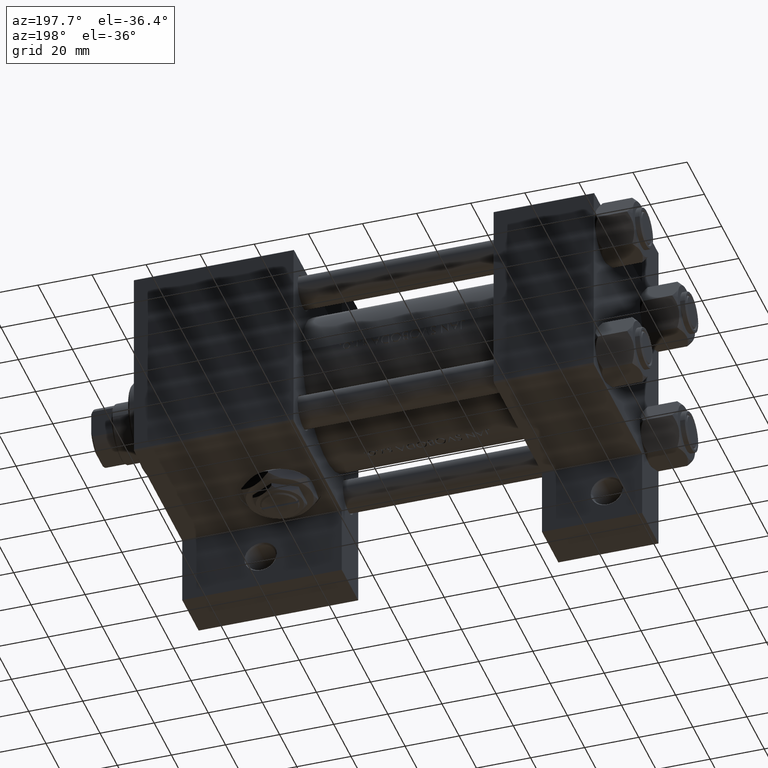
[diagram: clean part render]
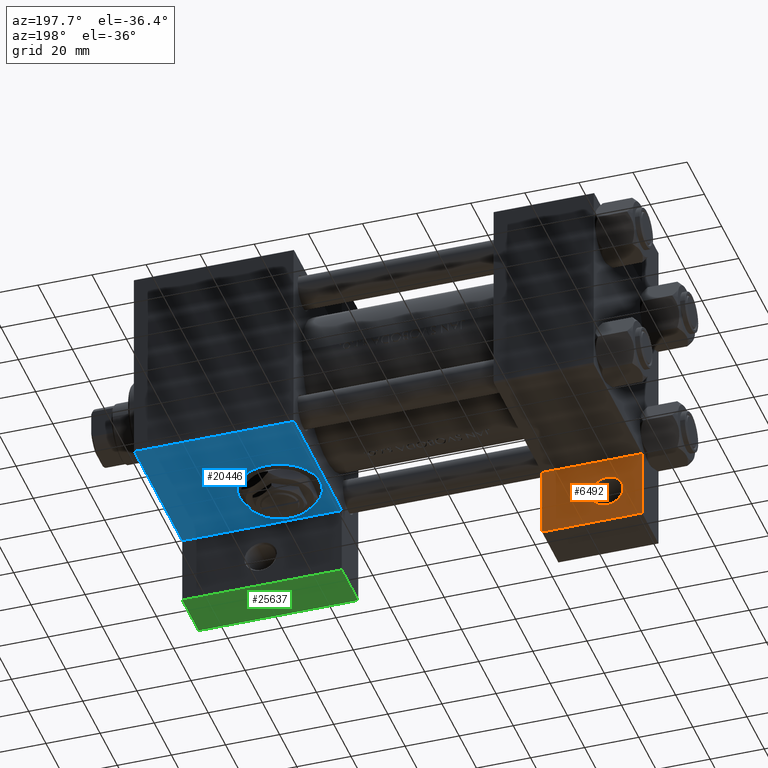
[diagram: same view with three faces highlighted in distinct colors, each labeled with its STEP entity id]
A machine part, auxiliary view with three faces highlighted in distinct colors.
Their STEP definitions:

[orange] entity #6492 — the highlighted planar face has unit normal (0, -1, 0).
#127 = AXIS2_PLACEMENT_3D ( 'NONE', #43331, #4980, #8968 ) ;
#504 = CARTESIAN_POINT ( 'NONE',  ( 8.470280871287256020E-15, 37.50000000000002842, -18.49999999999999645 ) ) ;
#770 = CARTESIAN_POINT ( 'NONE',  ( 0.000000000000000000, 37.49999999999999289, -18.49999999999999645 ) ) ;
#909 = VERTEX_POINT ( 'NONE', #42124 ) ;
#994 = CARTESIAN_POINT ( 'NONE',  ( 1.595073532467135441E-14, 63.50000000000000000, -18.50000000000000355 ) ) ;
#1362 = DIRECTION ( 'NONE',  ( -2.877097866686192789E-16, -1.000000000000000000, 0.000000000000000000 ) ) ;
#4054 = VERTEX_POINT ( 'NONE', #770 ) ;
#4980 = DIRECTION ( 'NONE',  ( 0.000000000000000000, 0.000000000000000000, -1.000000000000000000 ) ) ;
#6492 = ADVANCED_FACE ( 'NONE', ( #20176, #16437 ), #35867, .F. ) ;
#7336 = LINE ( 'NONE', #18792, #44892 ) ;
#8503 = EDGE_LOOP ( 'NONE', ( #36838, #16451, #15563, #22625 ) ) ;
#8575 = EDGE_LOOP ( 'NONE', ( #32968, #14718 ) ) ;
#8968 = DIRECTION ( 'NONE',  ( -1.000000000000000000, 0.000000000000000000, -0.000000000000000000 ) ) ;
#10226 = EDGE_CURVE ( 'NONE', #36001, #909, #40797, .T. ) ;
#10653 = AXIS2_PLACEMENT_3D ( 'NONE', #18210, #14724, #25950 ) ;
#12227 = VERTEX_POINT ( 'NONE', #37860 ) ;
#13316 = EDGE_CURVE ( 'NONE', #27125, #12227, #7336, .T. ) ;
#14275 = CARTESIAN_POINT ( 'NONE',  ( 1.595073532467135441E-14, 63.50000000000000000, -18.50000000000000355 ) ) ;
#14718 = ORIENTED_EDGE ( 'NONE', *, *, #15550, .T. ) ;
#14724 = DIRECTION ( 'NONE',  ( 0.000000000000000000, 0.000000000000000000, -1.000000000000000000 ) ) ;
#15550 = EDGE_CURVE ( 'NONE', #909, #36001, #28932, .T. ) ;
#15563 = ORIENTED_EDGE ( 'NONE', *, *, #13316, .T. ) ;
#16437 = FACE_OUTER_BOUND ( 'NONE', #8503, .T. ) ;
#16451 = ORIENTED_EDGE ( 'NONE', *, *, #28942, .T. ) ;
#18210 = CARTESIAN_POINT ( 'NONE',  ( 12.99999999999999822, 50.99999999999997868, -18.50000000000000000 ) ) ;
#18299 = DIRECTION ( 'NONE',  ( 2.668805347656626678E-16, 1.000000000000000000, 0.000000000000000000 ) ) ;
#18792 = CARTESIAN_POINT ( 'NONE',  ( 37.00000000000001421, 63.50000000000001421, -18.50000000000000355 ) ) ;
#18920 = LINE ( 'NONE', #504, #30851 ) ;
#19915 = DIRECTION ( 'NONE',  ( -1.000000000000000000, 0.000000000000000000, 0.000000000000000000 ) ) ;
#20176 = FACE_BOUND ( 'NONE', #8575, .T. ) ;
#22625 = ORIENTED_EDGE ( 'NONE', *, *, #45953, .T. ) ;
#23154 = DIRECTION ( 'NONE',  ( 1.000000000000000000, -3.750753461571474945E-16, 0.000000000000000000 ) ) ;
#23717 = VECTOR ( 'NONE', #1362, 1000.000000000000000 ) ;
#25404 = EDGE_CURVE ( 'NONE', #45305, #4054, #32229, .T. ) ;
#25950 = DIRECTION ( 'NONE',  ( -1.000000000000000000, 0.000000000000000000, 0.000000000000000000 ) ) ;
#27125 = VERTEX_POINT ( 'NONE', #31025 ) ;
#28091 = AXIS2_PLACEMENT_3D ( 'NONE', #29089, #44265, #40769 ) ;
#28932 = CIRCLE ( 'NONE', #10653, 5.999500000000022482 ) ;
#28942 = EDGE_CURVE ( 'NONE', #4054, #27125, #18920, .T. ) ;
#29089 = CARTESIAN_POINT ( 'NONE',  ( 12.99999999999999822, 50.99999999999997868, -18.50000000000000000 ) ) ;
#30851 = VECTOR ( 'NONE', #23154, 1000.000000000000000 ) ;
#31025 = CARTESIAN_POINT ( 'NONE',  ( 37.00000000000000711, 37.50000000000000711, -18.50000000000000355 ) ) ;
#32229 = LINE ( 'NONE', #46935, #23717 ) ;
#32968 = ORIENTED_EDGE ( 'NONE', *, *, #10226, .T. ) ;
#35867 = PLANE ( 'NONE',  #127 ) ;
#36001 = VERTEX_POINT ( 'NONE', #41953 ) ;
#36409 = VECTOR ( 'NONE', #19915, 1000.000000000000000 ) ;
#36838 = ORIENTED_EDGE ( 'NONE', *, *, #25404, .T. ) ;
#37860 = CARTESIAN_POINT ( 'NONE',  ( 37.00000000000001421, 63.50000000000000000, -18.50000000000000355 ) ) ;
#40769 = DIRECTION ( 'NONE',  ( -1.000000000000000000, 0.000000000000000000, 0.000000000000000000 ) ) ;
#40797 = CIRCLE ( 'NONE', #28091, 5.999500000000022482 ) ;
#41953 = CARTESIAN_POINT ( 'NONE',  ( 18.99950000000001893, 50.99999999999997868, -18.50000000000000000 ) ) ;
#42124 = CARTESIAN_POINT ( 'NONE',  ( 7.000499999999975742, 50.99999999999997868, -18.50000000000000000 ) ) ;
#43331 = CARTESIAN_POINT ( 'NONE',  ( 0.000000000000000000, 0.000000000000000000, -18.50000000000000000 ) ) ;
#44265 = DIRECTION ( 'NONE',  ( 0.000000000000000000, 0.000000000000000000, -1.000000000000000000 ) ) ;
#44892 = VECTOR ( 'NONE', #18299, 1000.000000000000000 ) ;
#45305 = VERTEX_POINT ( 'NONE', #14275 ) ;
#45953 = EDGE_CURVE ( 'NONE', #12227, #45305, #46580, .T. ) ;
#46580 = LINE ( 'NONE', #994, #36409 ) ;
#46935 = CARTESIAN_POINT ( 'NONE',  ( 1.595073532467135757E-14, 63.50000000000001421, -18.50000000000000355 ) ) ;

[blue] entity #20446 — the highlighted planar face has unit normal (0, 0, -1).
#2816 = EDGE_LOOP ( 'NONE', ( #30704, #26138 ) ) ;
#3623 = DIRECTION ( 'NONE',  ( 0.000000000000000000, 0.000000000000000000, -1.000000000000000000 ) ) ;
#3779 = DIRECTION ( 'NONE',  ( 0.000000000000000000, 1.000000000000000000, 0.000000000000000000 ) ) ;
#4215 = DIRECTION ( 'NONE',  ( 0.000000000000000000, -0.000000000000000000, 1.000000000000000000 ) ) ;
#5220 = EDGE_CURVE ( 'NONE', #10443, #32851, #31600, .T. ) ;
#5910 = ORIENTED_EDGE ( 'NONE', *, *, #48574, .F. ) ;
#6133 = AXIS2_PLACEMENT_3D ( 'NONE', #45622, #3779, #15479 ) ;
#7146 = ORIENTED_EDGE ( 'NONE', *, *, #37730, .T. ) ;
#8206 = DIRECTION ( 'NONE',  ( -1.000000000000000000, 3.528251137579946599E-16, -0.000000000000000000 ) ) ;
#8907 = CARTESIAN_POINT ( 'NONE',  ( 169.9999999999999716, 37.50000000000000000, 37.49999999999999289 ) ) ;
#10443 = VERTEX_POINT ( 'NONE', #45992 ) ;
#10821 = DIRECTION ( 'NONE',  ( 0.000000000000000000, 0.000000000000000000, 1.000000000000000000 ) ) ;
#12650 = DIRECTION ( 'NONE',  ( 0.000000000000000000, 0.000000000000000000, -1.000000000000000000 ) ) ;
#13575 = DIRECTION ( 'NONE',  ( 0.000000000000000000, 1.000000000000000000, 0.000000000000000000 ) ) ;
#15479 = DIRECTION ( 'NONE',  ( 0.000000000000000000, 0.000000000000000000, 1.000000000000000000 ) ) ;
#15674 = FACE_OUTER_BOUND ( 'NONE', #21494, .T. ) ;
#17797 = EDGE_CURVE ( 'NONE', #20803, #27124, #45819, .T. ) ;
#17904 = CIRCLE ( 'NONE', #30652, 15.00000000000002487 ) ;
#18745 = AXIS2_PLACEMENT_3D ( 'NONE', #26895, #46077, #4215 ) ;
#19022 = ORIENTED_EDGE ( 'NONE', *, *, #17797, .T. ) ;
#20052 = CARTESIAN_POINT ( 'NONE',  ( 169.9999999999999716, 37.50000000000000000, 36.99999999999999289 ) ) ;
#20446 = ADVANCED_FACE ( 'NONE', ( #23657, #15674 ), #35106, .T. ) ;
#20803 = VERTEX_POINT ( 'NONE', #38253 ) ;
#21021 = VECTOR ( 'NONE', #8206, 1000.000000000000000 ) ;
#21494 = EDGE_LOOP ( 'NONE', ( #5910, #35447, #7146, #19022 ) ) ;
#22281 = VERTEX_POINT ( 'NONE', #27440 ) ;
#23146 = EDGE_CURVE ( 'NONE', #22281, #42451, #42725, .T. ) ;
#23657 = FACE_BOUND ( 'NONE', #2816, .T. ) ;
#24122 = CARTESIAN_POINT ( 'NONE',  ( 169.9999999999999716, 37.50000000000000000, 36.99999999999999289 ) ) ;
#25809 = LINE ( 'NONE', #37754, #38871 ) ;
#26138 = ORIENTED_EDGE ( 'NONE', *, *, #23146, .F. ) ;
#26895 = CARTESIAN_POINT ( 'NONE',  ( 169.9999999999999716, 37.50000000000000000, 37.49999999999999289 ) ) ;
#27124 = VERTEX_POINT ( 'NONE', #46458 ) ;
#27440 = CARTESIAN_POINT ( 'NONE',  ( 128.0000000000000000, 37.50000000000000000, -15.00000000000002487 ) ) ;
#29873 = VECTOR ( 'NONE', #12650, 1000.000000000000000 ) ;
#30652 = AXIS2_PLACEMENT_3D ( 'NONE', #36725, #13575, #10821 ) ;
#30704 = ORIENTED_EDGE ( 'NONE', *, *, #40338, .F. ) ;
#31600 = LINE ( 'NONE', #24122, #44650 ) ;
#32303 = LINE ( 'NONE', #8907, #29873 ) ;
#32851 = VERTEX_POINT ( 'NONE', #20052 ) ;
#35106 = PLANE ( 'NONE',  #18745 ) ;
#35447 = ORIENTED_EDGE ( 'NONE', *, *, #5220, .T. ) ;
#36725 = CARTESIAN_POINT ( 'NONE',  ( 128.0000000000000000, 37.50000000000000000, 0.000000000000000000 ) ) ;
#37730 = EDGE_CURVE ( 'NONE', #32851, #20803, #32303, .T. ) ;
#37754 = CARTESIAN_POINT ( 'NONE',  ( 110.9999999999999858, 37.50000000000000000, 37.49999999999999289 ) ) ;
#38253 = CARTESIAN_POINT ( 'NONE',  ( 169.9999999999999716, 37.49999999999997868, -18.50000000000000000 ) ) ;
#38871 = VECTOR ( 'NONE', #3623, 1000.000000000000000 ) ;
#39315 = DIRECTION ( 'NONE',  ( 1.000000000000000000, 0.000000000000000000, 0.000000000000000000 ) ) ;
#40338 = EDGE_CURVE ( 'NONE', #42451, #22281, #17904, .T. ) ;
#42317 = CARTESIAN_POINT ( 'NONE',  ( 110.9999999999999858, 37.50000000000000000, -18.50000000000000000 ) ) ;
#42451 = VERTEX_POINT ( 'NONE', #42900 ) ;
#42725 = CIRCLE ( 'NONE', #6133, 15.00000000000002487 ) ;
#42900 = CARTESIAN_POINT ( 'NONE',  ( 128.0000000000000000, 37.50000000000000000, 15.00000000000002487 ) ) ;
#44650 = VECTOR ( 'NONE', #39315, 1000.000000000000000 ) ;
#45622 = CARTESIAN_POINT ( 'NONE',  ( 128.0000000000000000, 37.50000000000000000, 0.000000000000000000 ) ) ;
#45819 = LINE ( 'NONE', #42317, #21021 ) ;
#45992 = CARTESIAN_POINT ( 'NONE',  ( 110.9999999999999858, 37.50000000000000000, 36.99999999999999289 ) ) ;
#46077 = DIRECTION ( 'NONE',  ( -0.000000000000000000, 1.000000000000000000, 0.000000000000000000 ) ) ;
#46458 = CARTESIAN_POINT ( 'NONE',  ( 110.9999999999999858, 37.50000000000000000, -18.50000000000000355 ) ) ;
#48574 = EDGE_CURVE ( 'NONE', #10443, #27124, #25809, .T. ) ;

[green] entity #25637 — the highlighted planar face has unit normal (0, 0, -1).
#525 = ORIENTED_EDGE ( 'NONE', *, *, #46890, .F. ) ;
#2037 = DIRECTION ( 'NONE',  ( 0.000000000000000000, 0.000000000000000000, -1.000000000000000000 ) ) ;
#3555 = CARTESIAN_POINT ( 'NONE',  ( 110.9999999999999858, 63.50000000000000000, -37.50000000000000000 ) ) ;
#4011 = ORIENTED_EDGE ( 'NONE', *, *, #27339, .F. ) ;
#4273 = DIRECTION ( 'NONE',  ( -0.000000000000000000, 1.000000000000000000, 0.000000000000000000 ) ) ;
#6895 = VERTEX_POINT ( 'NONE', #34817 ) ;
#6988 = VECTOR ( 'NONE', #2037, 1000.000000000000000 ) ;
#8280 = EDGE_LOOP ( 'NONE', ( #4011, #525, #19706, #44880 ) ) ;
#9391 = VECTOR ( 'NONE', #9574, 1000.000000000000000 ) ;
#9574 = DIRECTION ( 'NONE',  ( 1.000000000000000000, 0.000000000000000000, 0.000000000000000000 ) ) ;
#12585 = LINE ( 'NONE', #43694, #9391 ) ;
#18134 = EDGE_CURVE ( 'NONE', #23447, #6895, #47154, .T. ) ;
#18986 = VECTOR ( 'NONE', #22978, 1000.000000000000000 ) ;
#19706 = ORIENTED_EDGE ( 'NONE', *, *, #47453, .T. ) ;
#20293 = VECTOR ( 'NONE', #27983, 1000.000000000000000 ) ;
#20498 = CARTESIAN_POINT ( 'NONE',  ( 170.0000000000000000, 63.50000000000000000, -18.50000000000000000 ) ) ;
#22978 = DIRECTION ( 'NONE',  ( 1.000000000000000000, 0.000000000000000000, 0.000000000000000000 ) ) ;
#23447 = VERTEX_POINT ( 'NONE', #24362 ) ;
#24362 = CARTESIAN_POINT ( 'NONE',  ( 170.0000000000000000, 63.50000000000000000, -18.50000000000000000 ) ) ;
#24694 = CARTESIAN_POINT ( 'NONE',  ( 110.9999999999999858, 63.50000000000000000, -37.50000000000000000 ) ) ;
#25637 = ADVANCED_FACE ( 'NONE', ( #29706 ), #26707, .T. ) ;
#26707 = PLANE ( 'NONE',  #27702 ) ;
#27339 = EDGE_CURVE ( 'NONE', #45804, #6895, #38178, .T. ) ;
#27702 = AXIS2_PLACEMENT_3D ( 'NONE', #33929, #4273, #44890 ) ;
#27983 = DIRECTION ( 'NONE',  ( 0.000000000000000000, 0.000000000000000000, -1.000000000000000000 ) ) ;
#29706 = FACE_OUTER_BOUND ( 'NONE', #8280, .T. ) ;
#30955 = VERTEX_POINT ( 'NONE', #46655 ) ;
#33929 = CARTESIAN_POINT ( 'NONE',  ( 110.9999999999999858, 63.50000000000000000, -18.50000000000000000 ) ) ;
#34817 = CARTESIAN_POINT ( 'NONE',  ( 170.0000000000000000, 63.50000000000000000, -37.50000000000000000 ) ) ;
#38178 = LINE ( 'NONE', #3555, #18986 ) ;
#43694 = CARTESIAN_POINT ( 'NONE',  ( 110.9999999999999858, 63.50000000000000000, -18.50000000000000000 ) ) ;
#43868 = CARTESIAN_POINT ( 'NONE',  ( 110.9999999999999858, 63.50000000000000000, -18.50000000000000000 ) ) ;
#44880 = ORIENTED_EDGE ( 'NONE', *, *, #18134, .T. ) ;
#44890 = DIRECTION ( 'NONE',  ( 0.000000000000000000, -0.000000000000000000, 1.000000000000000000 ) ) ;
#45804 = VERTEX_POINT ( 'NONE', #24694 ) ;
#46655 = CARTESIAN_POINT ( 'NONE',  ( 110.9999999999999858, 63.50000000000000000, -18.50000000000000000 ) ) ;
#46890 = EDGE_CURVE ( 'NONE', #30955, #45804, #47616, .T. ) ;
#47154 = LINE ( 'NONE', #20498, #20293 ) ;
#47453 = EDGE_CURVE ( 'NONE', #30955, #23447, #12585, .T. ) ;
#47616 = LINE ( 'NONE', #43868, #6988 ) ;